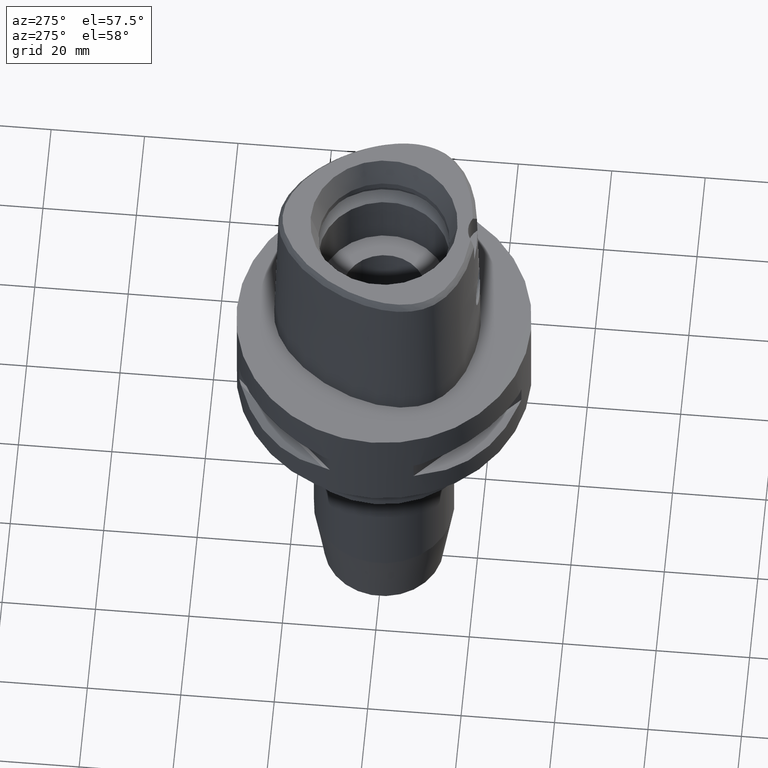
[diagram: clean part render]
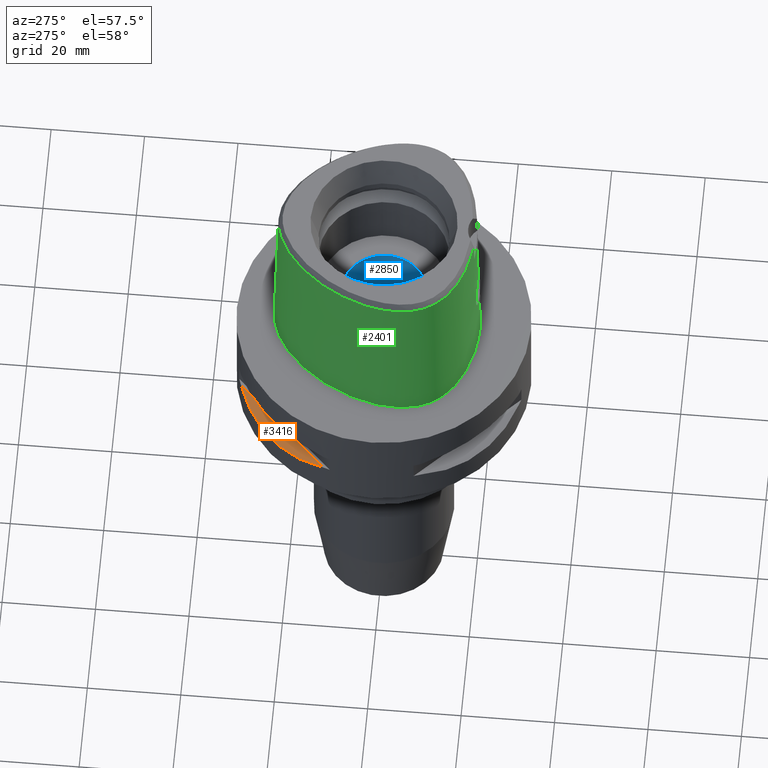
[diagram: same view with three faces highlighted in distinct colors, each labeled with its STEP entity id]
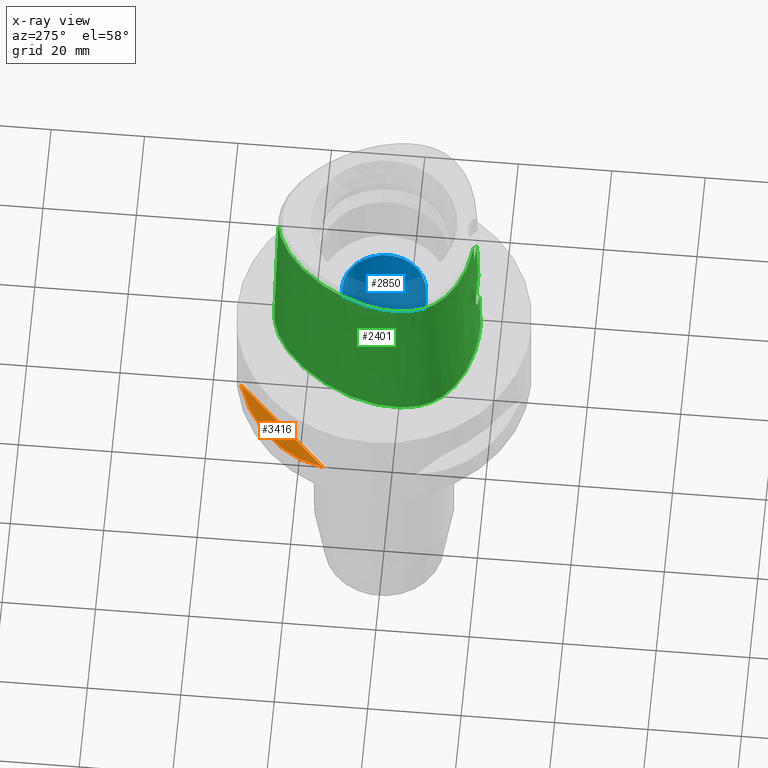
[diagram: x-ray of the same camera — body ghosted, the three highlighted faces saturated]
A machine part, auxiliary view with three faces highlighted in distinct colors.
The next image is the same camera in x-ray (body ghosted, the three faces saturated) — at least one of them is partly hidden behind the body in this view.
Their STEP definitions:

[orange] entity #3416 — the highlighted planar face has unit normal (0.3536, -0.3536, -0.866).
#408=CARTESIAN_POINT('',(-1.044775724750E1,2.971690375018E1,-1.405E1));
#409=CARTESIAN_POINT('',(-1.282388988809E1,2.888151197365E1,-1.467900482380E1));
#410=CARTESIAN_POINT('',(-1.711282138769E1,2.674739463903E1,-1.555870402292E1));
#411=CARTESIAN_POINT('',(-2.244574140438E1,2.244574140438E1,-1.597971692370E1));
#412=CARTESIAN_POINT('',(-2.674739463903E1,1.711282138769E1,-1.555870402292E1));
#413=CARTESIAN_POINT('',(-2.888151197365E1,1.282388988809E1,-1.467900482380E1));
#414=CARTESIAN_POINT('',(-2.971690375018E1,1.044775724750E1,-1.405E1));
#1472=DIRECTION('',(-7.071067811865E-1,-7.071067811865E-1,0.E0));
#1473=VECTOR('',#1472,2.725068831944E1);
#1474=CARTESIAN_POINT('',(-1.044775724750E1,2.971690375018E1,-1.405E1));
#1475=LINE('',#1474,#1473);
#1590=CARTESIAN_POINT('',(-1.044775724750E1,2.971690375018E1,-1.405E1));
#1591=VERTEX_POINT('',#1590);
#1592=VERTEX_POINT('',#414);
#3407=CARTESIAN_POINT('',(-3.422446612257E1,5.940194875108E0,-1.405E1));
#3408=DIRECTION('',(3.535533905933E-1,-3.535533905933E-1,-8.660254037844E-1));
#3409=DIRECTION('',(-6.123724356958E-1,6.123724356958E-1,-5.E-1));
#3410=AXIS2_PLACEMENT_3D('',#3407,#3408,#3409);
#3411=PLANE('',#3410);
#3412=ORIENTED_EDGE('',*,*,#2441,.F.);
#3413=ORIENTED_EDGE('',*,*,#3400,.T.);
#3414=EDGE_LOOP('',(#3412,#3413));
#3415=FACE_OUTER_BOUND('',#3414,.F.);
#415=B_SPLINE_CURVE_WITH_KNOTS('',3,(#408,#409,#410,#411,#412,#413,#414),
.UNSPECIFIED.,.F.,.F.,(4,1,1,1,4),(0.E0,2.5E-1,5.E-1,7.5E-1,1.E0),
.UNSPECIFIED.);
#2441=EDGE_CURVE('',#1591,#1592,#415,.T.);
#3400=EDGE_CURVE('',#1591,#1592,#1475,.T.);
#3416=ADVANCED_FACE('',(#3415),#3411,.F.);

[blue] entity #2850 — the highlighted cylindrical surface (partial cylindrical patch) has radius 9 mm, axis along (0, 0, -1).
#820=CARTESIAN_POINT('',(0.E0,0.E0,-1.6E1));
#821=DIRECTION('',(0.E0,0.E0,-1.E0));
#822=DIRECTION('',(0.E0,1.E0,0.E0));
#823=AXIS2_PLACEMENT_3D('',#820,#821,#822);
#844=DIRECTION('',(0.E0,0.E0,-1.E0));
#845=VECTOR('',#844,2.7E1);
#846=CARTESIAN_POINT('',(0.E0,-9.E0,1.1E1));
#847=LINE('',#846,#845);
#851=DIRECTION('',(0.E0,0.E0,1.E0));
#852=VECTOR('',#851,2.7E1);
#853=CARTESIAN_POINT('',(0.E0,9.E0,-1.6E1));
#854=LINE('',#853,#852);
#882=CARTESIAN_POINT('',(0.E0,0.E0,1.1E1));
#883=DIRECTION('',(0.E0,0.E0,1.E0));
#884=DIRECTION('',(0.E0,-1.E0,0.E0));
#885=AXIS2_PLACEMENT_3D('',#882,#883,#884);
#1684=CARTESIAN_POINT('',(0.E0,-9.E0,-1.6E1));
#1685=CARTESIAN_POINT('',(0.E0,9.E0,-1.6E1));
#1686=VERTEX_POINT('',#1684);
#1687=VERTEX_POINT('',#1685);
#1688=CARTESIAN_POINT('',(0.E0,9.E0,1.1E1));
#1689=VERTEX_POINT('',#1688);
#1690=CARTESIAN_POINT('',(0.E0,-9.E0,1.1E1));
#1691=VERTEX_POINT('',#1690);
#2838=CARTESIAN_POINT('',(0.E0,0.E0,3.99E1));
#2839=DIRECTION('',(0.E0,0.E0,-1.E0));
#2840=DIRECTION('',(0.E0,-1.E0,0.E0));
#2841=AXIS2_PLACEMENT_3D('',#2838,#2839,#2840);
#2842=CYLINDRICAL_SURFACE('',#2841,9.E0);
#2843=ORIENTED_EDGE('',*,*,#2831,.T.);
#2844=ORIENTED_EDGE('',*,*,#2814,.F.);
#2845=ORIENTED_EDGE('',*,*,#2828,.T.);
#2847=ORIENTED_EDGE('',*,*,#2846,.F.);
#2848=EDGE_LOOP('',(#2843,#2844,#2845,#2847));
#2849=FACE_OUTER_BOUND('',#2848,.F.);
#824=CIRCLE('',#823,9.E0);
#886=CIRCLE('',#885,9.E0);
#2814=EDGE_CURVE('',#1687,#1686,#824,.T.);
#2828=EDGE_CURVE('',#1687,#1689,#854,.T.);
#2831=EDGE_CURVE('',#1691,#1686,#847,.T.);
#2846=EDGE_CURVE('',#1691,#1689,#886,.T.);
#2850=ADVANCED_FACE('',(#2849),#2842,.F.);

[green] entity #2401 — the highlighted face is a freeform B-spline surface patch.
#199=CARTESIAN_POINT('',(-3.637738201364E0,-1.956971413237E1,3.652186244848E1));
#200=CARTESIAN_POINT('',(-4.502285094284E0,-1.947759963214E1,3.652183635307E1));
#201=CARTESIAN_POINT('',(-6.152121741733E0,-1.923442121091E1,3.652187937980E1));
#202=CARTESIAN_POINT('',(-8.374293971739E0,-1.873006074874E1,3.652185842930E1));
#203=CARTESIAN_POINT('',(-1.025076696571E1,-1.815679334677E1,3.652186581979E1));
#204=CARTESIAN_POINT('',(-1.192055141108E1,-1.751583045687E1,3.652186767152E1));
#205=CARTESIAN_POINT('',(-1.344565935085E1,-1.679680287323E1,3.652186443259E1));
#206=CARTESIAN_POINT('',(-1.484466031577E1,-1.599674716729E1,3.652186787333E1));
#207=CARTESIAN_POINT('',(-1.611531230265E1,-1.511537834981E1,3.652186886168E1));
#208=CARTESIAN_POINT('',(-1.720129497165E1,-1.420213366641E1,3.652186730944E1));
#209=CARTESIAN_POINT('',(-1.811714115733E1,-1.327074087094E1,3.652187099595E1));
#210=CARTESIAN_POINT('',(-1.888133094326E1,-1.232547534622E1,3.652184867083E1));
#211=CARTESIAN_POINT('',(-1.951527995538E1,-1.136083179833E1,3.652186675501E1));
#212=CARTESIAN_POINT('',(-2.004535829937E1,-1.034293081832E1,3.652187065339E1));
#213=CARTESIAN_POINT('',(-2.049379027070E1,-9.224936973801E0,3.652187625792E1));
#214=CARTESIAN_POINT('',(-2.085571439820E1,-7.984708117889E0,3.652186311960E1));
#215=CARTESIAN_POINT('',(-2.111905931742E1,-6.610589902540E0,3.652187122394E1));
#216=CARTESIAN_POINT('',(-2.126642786072E1,-5.076561439784E0,3.652186943527E1));
#217=CARTESIAN_POINT('',(-2.127803792925E1,-3.470136083689E0,3.652186869773E1));
#218=CARTESIAN_POINT('',(-2.115663247646E1,-1.800410333281E0,3.652186269198E1));
#219=CARTESIAN_POINT('',(-2.089658335990E1,-4.659677659016E-2,
3.652187397262E1));
#220=CARTESIAN_POINT('',(-2.048028255217E1,1.835372898458E0,3.652186958404E1));
#221=CARTESIAN_POINT('',(-1.984559281790E1,3.966127147927E0,3.652186039163E1));
#222=CARTESIAN_POINT('',(-1.894810376216E1,6.302171088854E0,3.652185537764E1));
#223=CARTESIAN_POINT('',(-1.782389740217E1,8.661485210431E0,3.652186607186E1));
#224=CARTESIAN_POINT('',(-1.651006368576E1,1.095088642360E1,3.652186222901E1));
#225=CARTESIAN_POINT('',(-1.503962721715E1,1.311336732432E1,3.652187367779E1));
#226=CARTESIAN_POINT('',(-1.346551785376E1,1.508027545360E1,3.652184842186E1));
#227=CARTESIAN_POINT('',(-1.192761011651E1,1.672243131558E1,3.652187365880E1));
#228=CARTESIAN_POINT('',(-1.049634663886E1,1.804474300624E1,3.652186476544E1));
#229=CARTESIAN_POINT('',(-9.103780083675E0,1.915987230638E1,3.652186639341E1));
#230=CARTESIAN_POINT('',(-7.717946666169E0,2.010984893632E1,3.652186851169E1));
#231=CARTESIAN_POINT('',(-6.319391111493E0,2.091262427063E1,3.652186521710E1));
#232=CARTESIAN_POINT('',(-4.930390754678E0,2.155611511372E1,3.652187379540E1));
#233=CARTESIAN_POINT('',(-3.594133322587E0,2.202985088846E1,3.652186395553E1));
#234=CARTESIAN_POINT('',(-2.339366182065E0,2.234460152983E1,3.652187989978E1));
#235=CARTESIAN_POINT('',(-1.137810638781E0,2.252429990262E1,3.652177990641E1));
#236=CARTESIAN_POINT('',(-3.803750591734E-1,2.256201468012E1,3.652186680743E1));
#237=CARTESIAN_POINT('',(-1.605084153856E-11,2.256201468012E1,
3.652186680744E1));
#249=CARTESIAN_POINT('',(-3.637738201364E0,-1.956971413237E1,3.652186244848E1));
#250=CARTESIAN_POINT('',(-3.649042726833E0,-1.958170231834E1,3.599710491520E1));
#251=CARTESIAN_POINT('',(-3.671106183707E0,-1.960533297179E1,3.494764182412E1));
#252=CARTESIAN_POINT('',(-3.704089539557E0,-1.964135162194E1,3.337369009748E1));
#253=CARTESIAN_POINT('',(-3.726005756395E0,-1.966575923510E1,3.232454432382E1));
#254=CARTESIAN_POINT('',(-3.736696126116E0,-1.967778323257E1,3.18E1));
#259=DIRECTION('',(-1.665636293796E-9,-2.499140646182E-2,-9.996876660253E-1));
#260=VECTOR('',#259,1.225382733632E1);
#261=CARTESIAN_POINT('',(2.041042029991E-8,-1.988004246002E1,3.180000004972E1));
#262=LINE('',#261,#260);
#266=CARTESIAN_POINT('',(0.E0,-2.018628283969E1,1.955E1));
#267=CARTESIAN_POINT('',(-3.535025939874E-1,-2.018628283969E1,1.955E1));
#268=CARTESIAN_POINT('',(-1.060473937797E0,-2.017767216830E1,1.945681925277E1));
#269=CARTESIAN_POINT('',(-2.047701543701E0,-2.014309980526E1,1.904804674692E1));
#270=CARTESIAN_POINT('',(-2.897566485544E0,-2.009784253651E1,1.839607694624E1));
#271=CARTESIAN_POINT('',(-3.549651586842E0,-2.005725832781E1,1.754541454944E1));
#272=CARTESIAN_POINT('',(-3.958413413604E0,-2.003677385322E1,1.655463469819E1));
#273=CARTESIAN_POINT('',(-4.096145834777E0,-2.004693977811E1,1.549746639839E1));
#274=CARTESIAN_POINT('',(-3.956998654836E0,-2.009014971096E1,1.444056005517E1));
#275=CARTESIAN_POINT('',(-3.548403793674E0,-2.016023887783E1,1.345303113610E1));
#276=CARTESIAN_POINT('',(-2.897581606987E0,-2.024315417861E1,1.260386165506E1));
#277=CARTESIAN_POINT('',(-2.045567629948E0,-2.032097908031E1,1.195043067914E1));
#278=CARTESIAN_POINT('',(-1.056750709433E0,-2.037569617876E1,1.154226914409E1));
#279=CARTESIAN_POINT('',(-3.518691721558E-1,-2.038876923348E1,1.145E1));
#280=CARTESIAN_POINT('',(-1.301085599816E-12,-2.038876923348E1,1.145E1));
#285=DIRECTION('',(-7.967746775720E-13,-2.499051295361E-2,-9.996876883619E-1));
#286=VECTOR('',#285,1.145357708542E1);
#287=CARTESIAN_POINT('',(-1.301085599816E-12,-2.038876923348E1,1.145E1));
#288=LINE('',#287,#286);
#351=CARTESIAN_POINT('',(5.537127096753E-11,2.347499999999E1,
1.231607408651E-13));
#352=CARTESIAN_POINT('',(-4.030501311829E-1,2.347499999999E1,
1.231607408651E-13));
#353=CARTESIAN_POINT('',(-1.225941998255E0,2.343451160779E1,
-5.715909875705E-14));
#354=CARTESIAN_POINT('',(-2.506176665873E0,2.324356707891E1,
1.531573435204E-14));
#355=CARTESIAN_POINT('',(-3.845796668515E0,2.290883543718E1,0.E0));
#356=CARTESIAN_POINT('',(-5.250746147550E0,2.241254569104E1,0.E0));
#357=CARTESIAN_POINT('',(-6.726516064720E0,2.173277639394E1,0.E0));
#358=CARTESIAN_POINT('',(-8.273641246778E0,2.084477362547E1,0.E0));
#359=CARTESIAN_POINT('',(-9.885913422893E0,1.972338100359E1,0.E0));
#360=CARTESIAN_POINT('',(-1.154744726761E1,1.834711606382E1,0.E0));
#361=CARTESIAN_POINT('',(-1.322945947941E1,1.670490312677E1,0.E0));
#362=CARTESIAN_POINT('',(-1.488998375980E1,1.480301826078E1,0.E0));
#363=CARTESIAN_POINT('',(-1.647600663520E1,1.267100928078E1,0.E0));
#364=CARTESIAN_POINT('',(-1.792806340323E1,1.036743994302E1,0.E0));
#365=CARTESIAN_POINT('',(-1.919922487795E1,7.958616034095E0,0.E0));
#366=CARTESIAN_POINT('',(-2.025496370791E1,5.518994401160E0,0.E0));
#367=CARTESIAN_POINT('',(-2.107426163142E1,3.129172675913E0,0.E0));
#368=CARTESIAN_POINT('',(-2.165777423345E1,8.504171987544E-1,0.E0));
#369=CARTESIAN_POINT('',(-2.202111550992E1,-1.278299047426E0,0.E0));
#370=CARTESIAN_POINT('',(-2.218808757016E1,-3.236928503894E0,0.E0));
#371=CARTESIAN_POINT('',(-2.218526770248E1,-5.022718452614E0,0.E0));
#372=CARTESIAN_POINT('',(-2.203747271344E1,-6.642517845331E0,0.E0));
#373=CARTESIAN_POINT('',(-2.176617229092E1,-8.108523993479E0,0.E0));
#374=CARTESIAN_POINT('',(-2.138677834896E1,-9.439129148101E0,0.E0));
#375=CARTESIAN_POINT('',(-2.091376839585E1,-1.064202520385E1,0.E0));
#376=CARTESIAN_POINT('',(-2.035024914663E1,-1.174401299512E1,0.E0));
#377=CARTESIAN_POINT('',(-1.967806989895E1,-1.278412507066E1,0.E0));
#378=CARTESIAN_POINT('',(-1.887223540840E1,-1.379701833718E1,0.E0));
#379=CARTESIAN_POINT('',(-1.791140476887E1,-1.478999919802E1,0.E0));
#380=CARTESIAN_POINT('',(-1.677813911649E1,-1.575847054695E1,0.E0));
#381=CARTESIAN_POINT('',(-1.545062996871E1,-1.669637509083E1,0.E0));
#382=CARTESIAN_POINT('',(-1.390671501554E1,-1.759207676081E1,0.E0));
#383=CARTESIAN_POINT('',(-1.212778375120E1,-1.842742743536E1,0.E0));
#384=CARTESIAN_POINT('',(-1.010373641256E1,-1.917775025560E1,0.E0));
#385=CARTESIAN_POINT('',(-7.838492822532E0,-1.981269760954E1,0.E0));
#386=CARTESIAN_POINT('',(-5.361005632779E0,-2.029893781401E1,
1.567469687592E-14));
#387=CARTESIAN_POINT('',(-2.716376248306E0,-2.060527506761E1,
-5.849876513417E-14));
#388=CARTESIAN_POINT('',(-9.158142642990E-1,-2.0675E1,1.260473207291E-13));
#389=CARTESIAN_POINT('',(-1.042700578910E-11,-2.0675E1,1.260473207291E-13));
#1055=DIRECTION('',(1.954987868656E-12,2.499051290954E-2,-9.996876883630E-1));
#1056=VECTOR('',#1055,3.653327657485E1);
#1057=CARTESIAN_POINT('',(-1.605084153856E-11,2.256201468012E1,
3.652186680744E1));
#1058=LINE('',#1057,#1056);
#1072=CARTESIAN_POINT('',(2.041042029991E-8,-1.988004246002E1,
3.180000004972E1));
#1073=CARTESIAN_POINT('',(-4.161790280178E-1,-1.988004245993E1,
3.180000004972E1));
#1074=CARTESIAN_POINT('',(-1.247889105566E0,-1.986528007158E1,
3.179999997680E1));
#1075=CARTESIAN_POINT('',(-2.494485023973E0,-1.979770229313E1,
3.180000000663E1));
#1076=CARTESIAN_POINT('',(-3.322953884429E0,-1.972294683092E1,3.18E1));
#1077=CARTESIAN_POINT('',(-3.736696126116E0,-1.967778323257E1,3.18E1));
#1565=CARTESIAN_POINT('',(-3.736722311399E0,-1.967781602444E1,3.18E1));
#1566=VERTEX_POINT('',#1565);
#1567=VERTEX_POINT('',#249);
#1568=CARTESIAN_POINT('',(-1.605084153856E-11,2.256201468012E1,
3.652186680744E1));
#1569=VERTEX_POINT('',#1568);
#1570=VERTEX_POINT('',#351);
#1571=VERTEX_POINT('',#389);
#1572=VERTEX_POINT('',#1072);
#1573=CARTESIAN_POINT('',(0.E0,-2.018628283969E1,1.955E1));
#1574=VERTEX_POINT('',#1573);
#1575=VERTEX_POINT('',#280);
#2284=CARTESIAN_POINT('',(7.234356447997E-1,2.347140592140E1,
-7.304374675483E-1));
#2285=CARTESIAN_POINT('',(7.042335330738E-1,2.315549829247E1,1.193047863662E1));
#2286=CARTESIAN_POINT('',(6.850314213479E-1,2.283959066354E1,2.459139474079E1));
#2287=CARTESIAN_POINT('',(6.658293096221E-1,2.252368303461E1,3.725231084496E1));
#2288=CARTESIAN_POINT('',(4.823619555349E-1,2.348603817684E1,
-7.304374675483E-1));
#2289=CARTESIAN_POINT('',(4.696382082388E-1,2.316972814289E1,1.193047863662E1));
#2290=CARTESIAN_POINT('',(4.569144609427E-1,2.285341810893E1,2.459139474079E1));
#2291=CARTESIAN_POINT('',(4.441907136466E-1,2.253710807497E1,3.725231084496E1));
#2292=CARTESIAN_POINT('',(-6.149727124186E-1,2.351889464397E1,
-7.304374675483E-1));
#2293=CARTESIAN_POINT('',(-5.985508230361E-1,2.320171286500E1,
1.193047863662E1));
#2294=CARTESIAN_POINT('',(-5.821289336535E-1,2.288453108603E1,
2.459139474079E1));
#2295=CARTESIAN_POINT('',(-5.657070442710E-1,2.256734930706E1,
3.725231084496E1));
#2296=CARTESIAN_POINT('',(-2.568271204689E0,2.331126237869E1,
-7.304374675483E-1));
#2297=CARTESIAN_POINT('',(-2.503210923996E0,2.299958948147E1,1.193047863662E1));
#2298=CARTESIAN_POINT('',(-2.438150643302E0,2.268791658424E1,2.459139474079E1));
#2299=CARTESIAN_POINT('',(-2.373090362609E0,2.237624368702E1,3.725231084496E1));
#2300=CARTESIAN_POINT('',(-5.105252914125E0,2.254305023745E1,
-7.304374675483E-1));
#2301=CARTESIAN_POINT('',(-4.987110702196E0,2.224795289248E1,1.193047863662E1));
#2302=CARTESIAN_POINT('',(-4.868968490266E0,2.195285554750E1,2.459139474079E1));
#2303=CARTESIAN_POINT('',(-4.750826278336E0,2.165775820252E1,3.725231084496E1));
#2304=CARTESIAN_POINT('',(-7.580410837471E0,2.133037925832E1,
-7.304374675483E-1));
#2305=CARTESIAN_POINT('',(-7.420053183395E0,2.105635753085E1,1.193047863662E1));
#2306=CARTESIAN_POINT('',(-7.259695529320E0,2.078233580339E1,2.459139474079E1));
#2307=CARTESIAN_POINT('',(-7.099337875245E0,2.050831407593E1,3.725231084496E1));
#2308=CARTESIAN_POINT('',(-1.075753573473E1,1.918839675344E1,
-7.304374675483E-1));
#2309=CARTESIAN_POINT('',(-1.055288411640E1,1.894467594383E1,1.193047863662E1));
#2310=CARTESIAN_POINT('',(-1.034823249807E1,1.870095513423E1,2.459139474079E1));
#2311=CARTESIAN_POINT('',(-1.014358087974E1,1.845723432462E1,3.725231084496E1));
#2312=CARTESIAN_POINT('',(-1.442198651595E1,1.565278599908E1,
-7.304374675483E-1));
#2313=CARTESIAN_POINT('',(-1.417879765891E1,1.544741201493E1,1.193047863662E1));
#2314=CARTESIAN_POINT('',(-1.393560880187E1,1.524203803079E1,2.459139474079E1));
#2315=CARTESIAN_POINT('',(-1.369241994482E1,1.503666404664E1,3.725231084496E1));
#2316=CARTESIAN_POINT('',(-1.808416037856E1,1.044089486947E1,
-7.304374675483E-1));
#2317=CARTESIAN_POINT('',(-1.780867316146E1,1.028184213203E1,1.193047863662E1));
#2318=CARTESIAN_POINT('',(-1.753318594435E1,1.012278939458E1,2.459139474079E1));
#2319=CARTESIAN_POINT('',(-1.725769872724E1,9.963736657136E0,3.725231084496E1));
#2320=CARTESIAN_POINT('',(-2.076670354412E1,4.663413652187E0,
-7.304374675483E-1));
#2321=CARTESIAN_POINT('',(-2.046725053180E1,4.555493680941E0,1.193047863662E1));
#2322=CARTESIAN_POINT('',(-2.016779751949E1,4.447573709694E0,2.459139474079E1));
#2323=CARTESIAN_POINT('',(-1.986834450717E1,4.339653738448E0,3.725231084496E1));
#2324=CARTESIAN_POINT('',(-2.199640701070E1,-2.778990171536E-1,
-7.304374675483E-1));
#2325=CARTESIAN_POINT('',(-2.168301110826E1,-3.332743864910E-1,
1.193047863662E1));
#2326=CARTESIAN_POINT('',(-2.136961520581E1,-3.886497558284E-1,
2.459139474079E1));
#2327=CARTESIAN_POINT('',(-2.105621930337E1,-4.440251251658E-1,
3.725231084496E1));
#2328=CARTESIAN_POINT('',(-2.226285556007E1,-4.100361500080E0,
-7.304374675483E-1));
#2329=CARTESIAN_POINT('',(-2.194536988042E1,-4.102220498693E0,
1.193047863662E1));
#2330=CARTESIAN_POINT('',(-2.162788420077E1,-4.104079497306E0,
2.459139474079E1));
#2331=CARTESIAN_POINT('',(-2.131039852113E1,-4.105938495919E0,
3.725231084496E1));
#2332=CARTESIAN_POINT('',(-2.207548128584E1,-6.850245534728E0,
-7.304374675483E-1));
#2333=CARTESIAN_POINT('',(-2.176083721370E1,-6.805026057777E0,
1.193047863662E1));
#2334=CARTESIAN_POINT('',(-2.144619314156E1,-6.759806580827E0,
2.459139474079E1));
#2335=CARTESIAN_POINT('',(-2.113154906941E1,-6.714587103876E0,
3.725231084496E1));
#2336=CARTESIAN_POINT('',(-2.157281238753E1,-9.001246193671E0,
-7.304374675483E-1));
#2337=CARTESIAN_POINT('',(-2.126836751199E1,-8.910752274210E0,
1.193047863662E1));
#2338=CARTESIAN_POINT('',(-2.096392263646E1,-8.820258354750E0,
2.459139474079E1));
#2339=CARTESIAN_POINT('',(-2.065947776093E1,-8.729764435289E0,
3.725231084496E1));
#2340=CARTESIAN_POINT('',(-2.094844325381E1,-1.061175396783E1,
-7.304374675483E-1));
#2341=CARTESIAN_POINT('',(-2.065879057110E1,-1.048283623383E1,
1.193047863662E1));
#2342=CARTESIAN_POINT('',(-2.036913788839E1,-1.035391849983E1,
2.459139474079E1));
#2343=CARTESIAN_POINT('',(-2.007948520569E1,-1.022500076582E1,
3.725231084496E1));
#2344=CARTESIAN_POINT('',(-2.036546124053E1,-1.175800452942E1,
-7.304374675483E-1));
#2345=CARTESIAN_POINT('',(-2.009084482120E1,-1.159945466520E1,
1.193047863662E1));
#2346=CARTESIAN_POINT('',(-1.981622840188E1,-1.144090480098E1,
2.459139474079E1));
#2347=CARTESIAN_POINT('',(-1.954161198255E1,-1.128235493675E1,
3.725231084496E1));
#2348=CARTESIAN_POINT('',(-1.966427014197E1,-1.283600704361E1,
-7.304374675483E-1));
#2349=CARTESIAN_POINT('',(-1.940779776420E1,-1.264961932934E1,
1.193047863662E1));
#2350=CARTESIAN_POINT('',(-1.915132538643E1,-1.246323161507E1,
2.459139474079E1));
#2351=CARTESIAN_POINT('',(-1.889485300866E1,-1.227684390080E1,
3.725231084496E1));
#2352=CARTESIAN_POINT('',(-1.858171406201E1,-1.418198046185E1,
-7.304374675483E-1));
#2353=CARTESIAN_POINT('',(-1.835112161179E1,-1.396357042523E1,
1.193047863662E1));
#2354=CARTESIAN_POINT('',(-1.812052916156E1,-1.374516038861E1,
2.459139474079E1));
#2355=CARTESIAN_POINT('',(-1.788993671133E1,-1.352675035199E1,
3.725231084496E1));
#2356=CARTESIAN_POINT('',(-1.697022730781E1,-1.569280482696E1,
-7.304374675483E-1));
#2357=CARTESIAN_POINT('',(-1.677374388869E1,-1.544292480544E1,
1.193047863662E1));
#2358=CARTESIAN_POINT('',(-1.657726046956E1,-1.519304478392E1,
2.459139474079E1));
#2359=CARTESIAN_POINT('',(-1.638077705044E1,-1.494316476241E1,
3.725231084496E1));
#2360=CARTESIAN_POINT('',(-1.468244496856E1,-1.723001772568E1,
-7.304374675483E-1));
#2361=CARTESIAN_POINT('',(-1.452531267956E1,-1.695413756397E1,
1.193047863662E1));
#2362=CARTESIAN_POINT('',(-1.436818039056E1,-1.667825740226E1,
2.459139474079E1));
#2363=CARTESIAN_POINT('',(-1.421104810156E1,-1.640237724055E1,
3.725231084496E1));
#2364=CARTESIAN_POINT('',(-1.123887130070E1,-1.891049775514E1,
-7.304374675483E-1));
#2365=CARTESIAN_POINT('',(-1.113012658792E1,-1.861140124946E1,
1.193047863662E1));
#2366=CARTESIAN_POINT('',(-1.102138187514E1,-1.831230474377E1,
2.459139474079E1));
#2367=CARTESIAN_POINT('',(-1.091263716235E1,-1.801320823809E1,
3.725231084496E1));
#2368=CARTESIAN_POINT('',(-6.344715575755E0,-2.031619964442E1,
-7.304374675483E-1));
#2369=CARTESIAN_POINT('',(-6.288476595673E0,-2.000290580784E1,
1.193047863662E1));
#2370=CARTESIAN_POINT('',(-6.232237615592E0,-1.968961197126E1,
2.459139474079E1));
#2371=CARTESIAN_POINT('',(-6.175998635510E0,-1.937631813467E1,
3.725231084496E1));
#2372=CARTESIAN_POINT('',(-1.886862291950E0,-2.071358859382E1,
-7.304374675483E-1));
#2373=CARTESIAN_POINT('',(-1.870070496683E0,-2.039691401293E1,
1.193047863662E1));
#2374=CARTESIAN_POINT('',(-1.853278701416E0,-2.008023943205E1,
2.459139474079E1));
#2375=CARTESIAN_POINT('',(-1.836486906149E0,-1.976356485117E1,
3.725231084496E1));
#2376=CARTESIAN_POINT('',(4.560943669426E-1,-2.069106767949E1,
-7.304374675483E-1));
#2377=CARTESIAN_POINT('',(4.520368093057E-1,-2.037458469290E1,
1.193047863662E1));
#2378=CARTESIAN_POINT('',(4.479792516688E-1,-2.005810170631E1,
2.459139474079E1));
#2379=CARTESIAN_POINT('',(4.439216940319E-1,-1.974161871972E1,
3.725231084496E1));
#2380=CARTESIAN_POINT('',(6.840430852546E-1,-2.068668154457E1,
-7.304374675483E-1));
#2381=CARTESIAN_POINT('',(6.779535359740E-1,-2.037023531127E1,
1.193047863662E1));
#2382=CARTESIAN_POINT('',(6.718639866935E-1,-2.005378907798E1,
2.459139474079E1));
#2383=CARTESIAN_POINT('',(6.657744374129E-1,-1.973734284469E1,
3.725231084496E1));
#2384=B_SPLINE_SURFACE_WITH_KNOTS('',3,3,((#2284,#2285,#2286,#2287),(#2288,
#2289,#2290,#2291),(#2292,#2293,#2294,#2295),(#2296,#2297,#2298,#2299),(#2300,
#2301,#2302,#2303),(#2304,#2305,#2306,#2307),(#2308,#2309,#2310,#2311),(#2312,
#2313,#2314,#2315),(#2316,#2317,#2318,#2319),(#2320,#2321,#2322,#2323),(#2324,
#2325,#2326,#2327),(#2328,#2329,#2330,#2331),(#2332,#2333,#2334,#2335),(#2336,
#2337,#2338,#2339),(#2340,#2341,#2342,#2343),(#2344,#2345,#2346,#2347),(#2348,
#2349,#2350,#2351),(#2352,#2353,#2354,#2355),(#2356,#2357,#2358,#2359),(#2360,
#2361,#2362,#2363),(#2364,#2365,#2366,#2367),(#2368,#2369,#2370,#2371),(#2372,
#2373,#2374,#2375),(#2376,#2377,#2378,#2379),(#2380,#2381,#2382,#2383)),
.UNSPECIFIED.,.F.,.F.,.F.,(4,1,1,1,1,1,1,1,1,1,1,1,1,1,1,1,1,1,1,1,1,1,4),(4,4),
(-1.173777939052E-2,0.E0,4.166666666752E-2,8.333333333413E-2,1.250000000008E-1,
1.666666666674E-1,2.500000000006E-1,3.333333333338E-1,4.166666666671E-1,
5.000000000003E-1,5.416666666670E-1,5.833333333335E-1,6.250000000002E-1,
6.458333333335E-1,6.666666666668E-1,6.875000000001E-1,7.083333333334E-1,7.5E-1,
7.916666666667E-1,8.333333333333E-1,9.166666666666E-1,1.E0,1.008985696609E0),(
6.976299746220E-9,9.999996442086E-1),.UNSPECIFIED.);
#2386=ORIENTED_EDGE('',*,*,#2385,.F.);
#2388=ORIENTED_EDGE('',*,*,#2387,.F.);
#2389=ORIENTED_EDGE('',*,*,#2277,.F.);
#2390=ORIENTED_EDGE('',*,*,#1762,.T.);
#2392=ORIENTED_EDGE('',*,*,#2391,.F.);
#2394=ORIENTED_EDGE('',*,*,#2393,.T.);
#2396=ORIENTED_EDGE('',*,*,#2395,.T.);
#2398=ORIENTED_EDGE('',*,*,#2397,.T.);
#2399=EDGE_LOOP('',(#2386,#2388,#2389,#2390,#2392,#2394,#2396,#2398));
#2400=FACE_OUTER_BOUND('',#2399,.F.);
#238=B_SPLINE_CURVE_WITH_KNOTS('',3,(#199,#200,#201,#202,#203,#204,#205,#206,
#207,#208,#209,#210,#211,#212,#213,#214,#215,#216,#217,#218,#219,#220,#221,#222,
#223,#224,#225,#226,#227,#228,#229,#230,#231,#232,#233,#234,#235,#236,#237),
.UNSPECIFIED.,.F.,.F.,(4,1,1,1,1,1,1,1,1,1,1,1,1,1,1,1,1,1,1,1,1,1,1,1,1,1,1,1,
1,1,1,1,1,1,1,1,4),(0.E0,2.777777777778E-2,5.555555555556E-2,8.333333333333E-2,
1.111111111111E-1,1.388888888889E-1,1.666666666667E-1,1.944444444444E-1,
2.222222222222E-1,2.5E-1,2.777777777778E-1,3.055555555556E-1,3.333333333333E-1,
3.611111111111E-1,3.888888888889E-1,4.166666666667E-1,4.444444444444E-1,
4.722222222222E-1,5.E-1,5.277777777778E-1,5.555555555556E-1,5.833333333333E-1,
6.111111111111E-1,6.388888888889E-1,6.666666666667E-1,6.944444444444E-1,
7.222222222222E-1,7.5E-1,7.777777777778E-1,8.055555555556E-1,8.333333333333E-1,
8.611111111111E-1,8.888888888889E-1,9.166666666667E-1,9.444444444444E-1,
9.722222222222E-1,1.E0),.UNSPECIFIED.);
#255=B_SPLINE_CURVE_WITH_KNOTS('',3,(#249,#250,#251,#252,#253,#254),
.UNSPECIFIED.,.F.,.F.,(4,1,1,4),(0.E0,3.333333333333E-1,6.666666666667E-1,1.E0),
.UNSPECIFIED.);
#281=B_SPLINE_CURVE_WITH_KNOTS('',3,(#266,#267,#268,#269,#270,#271,#272,#273,
#274,#275,#276,#277,#278,#279,#280),.UNSPECIFIED.,.F.,.F.,(4,1,1,1,1,1,1,1,1,1,
1,1,4),(0.E0,8.333333333333E-2,1.666666666667E-1,2.5E-1,3.333333333333E-1,
4.166666666667E-1,5.E-1,5.833333333333E-1,6.666666666667E-1,7.5E-1,
8.333333333333E-1,9.166666666667E-1,1.E0),.UNSPECIFIED.);
#390=B_SPLINE_CURVE_WITH_KNOTS('',3,(#351,#352,#353,#354,#355,#356,#357,#358,
#359,#360,#361,#362,#363,#364,#365,#366,#367,#368,#369,#370,#371,#372,#373,#374,
#375,#376,#377,#378,#379,#380,#381,#382,#383,#384,#385,#386,#387,#388,#389),
.UNSPECIFIED.,.F.,.F.,(4,1,1,1,1,1,1,1,1,1,1,1,1,1,1,1,1,1,1,1,1,1,1,1,1,1,1,1,
1,1,1,1,1,1,1,1,4),(0.E0,2.777777777778E-2,5.555555555556E-2,8.333333333333E-2,
1.111111111111E-1,1.388888888889E-1,1.666666666667E-1,1.944444444444E-1,
2.222222222222E-1,2.5E-1,2.777777777778E-1,3.055555555556E-1,3.333333333333E-1,
3.611111111111E-1,3.888888888889E-1,4.166666666667E-1,4.444444444444E-1,
4.722222222222E-1,5.E-1,5.277777777778E-1,5.555555555556E-1,5.833333333333E-1,
6.111111111111E-1,6.388888888889E-1,6.666666666667E-1,6.944444444444E-1,
7.222222222222E-1,7.5E-1,7.777777777778E-1,8.055555555556E-1,8.333333333333E-1,
8.611111111111E-1,8.888888888889E-1,9.166666666667E-1,9.444444444444E-1,
9.722222222222E-1,1.E0),.UNSPECIFIED.);
#1078=B_SPLINE_CURVE_WITH_KNOTS('',3,(#1072,#1073,#1074,#1075,#1076,#1077),
.UNSPECIFIED.,.F.,.F.,(4,1,1,4),(0.E0,3.333333333333E-1,6.666666666667E-1,1.E0),
.UNSPECIFIED.);
#1762=EDGE_CURVE('',#1567,#1566,#255,.T.);
#2277=EDGE_CURVE('',#1567,#1569,#238,.T.);
#2385=EDGE_CURVE('',#1570,#1571,#390,.T.);
#2387=EDGE_CURVE('',#1569,#1570,#1058,.T.);
#2391=EDGE_CURVE('',#1572,#1566,#1078,.T.);
#2393=EDGE_CURVE('',#1572,#1574,#262,.T.);
#2395=EDGE_CURVE('',#1574,#1575,#281,.T.);
#2397=EDGE_CURVE('',#1575,#1571,#288,.T.);
#2401=ADVANCED_FACE('',(#2400),#2384,.T.);